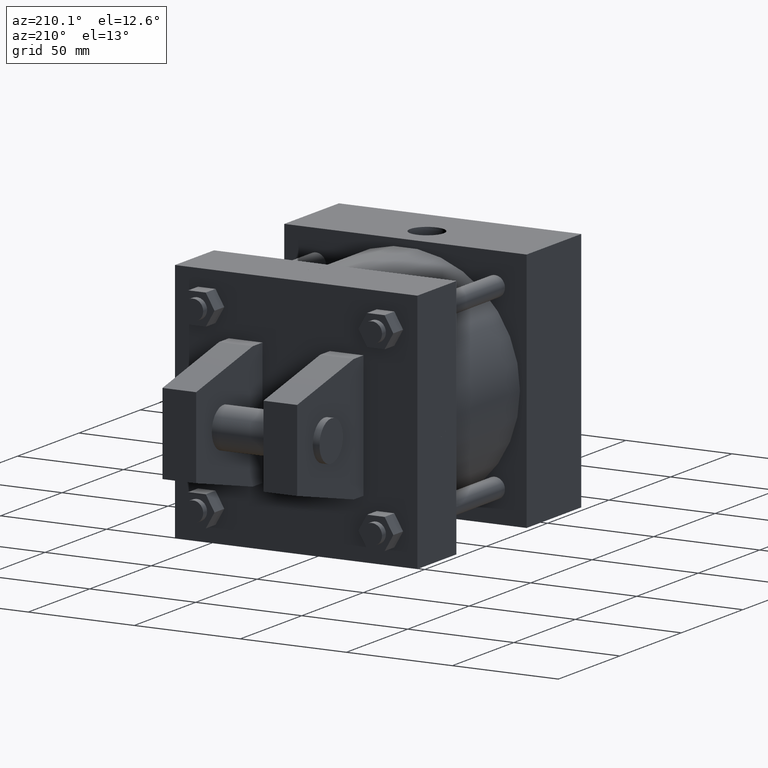
[diagram: clean part render]
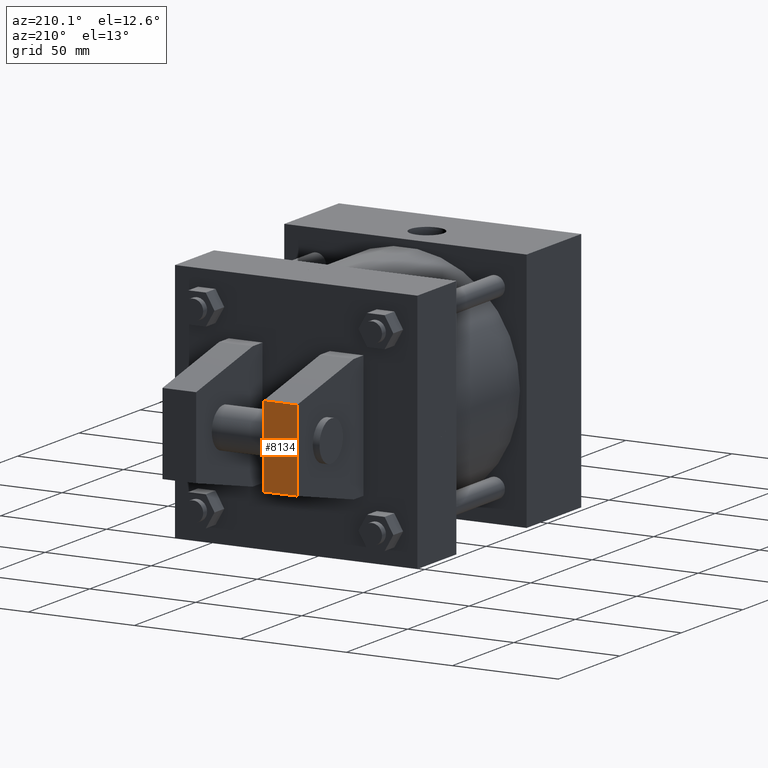
[diagram: same view with one face highlighted and labeled with its STEP entity id]
A machine part, auxiliary view. The second image highlights one B-rep face of the part: STEP entity #8134.
In plain terms, the highlighted planar face has unit normal (0, -1, 0).
Its self-contained STEP definition (entity closure, byte-faithful):
#4481=VERTEX_POINT('',#4482);
#4482=CARTESIAN_POINT('',(-1.587500000E+001,2.222500000E+002,-1.905000000E+001));
#4483=EDGE_CURVE('',#4481,#4488,#4484,.T.);
#4484=LINE('',#4485,#4486);
#4485=CARTESIAN_POINT('',(-1.587500000E+001,2.222500000E+002,-1.905000000E+001));
#4486=VECTOR('',#4487,1.0E+000);
#4487=DIRECTION('',(0.0E+000,0.0E+000,1.0E+000));
#4488=VERTEX_POINT('',#4489);
#4489=CARTESIAN_POINT('',(-1.587500000E+001,2.222500000E+002,1.905000000E+001));
#4809=VERTEX_POINT('',#4810);
#4810=CARTESIAN_POINT('',(-3.175000000E+001,2.222500000E+002,1.905000000E+001));
#4811=EDGE_CURVE('',#4809,#4816,#4812,.T.);
#4812=LINE('',#4813,#4814);
#4813=CARTESIAN_POINT('',(-3.175000000E+001,2.222500000E+002,-1.905000000E+001));
#4814=VECTOR('',#4815,1.0E+000);
#4815=DIRECTION('',(0.0E+000,0.0E+000,-1.0E+000));
#4816=VERTEX_POINT('',#4817);
#4817=CARTESIAN_POINT('',(-3.175000000E+001,2.222500000E+002,-1.905000000E+001));
#5006=EDGE_CURVE('',#4816,#4481,#5007,.T.);
#5007=LINE('',#5008,#5009);
#5008=CARTESIAN_POINT('',(-3.175000000E+001,2.222500000E+002,-1.905000000E+001));
#5009=VECTOR('',#5010,1.0E+000);
#5010=DIRECTION('',(1.0E+000,0.0E+000,0.0E+000));
#5024=FACE_OUTER_BOUND('',#5025,.T.);
#5025=EDGE_LOOP('',(#5026,#5027,#5028,#5029));
#5026=ORIENTED_EDGE('',*,*,#4483,.F.);
#5027=ORIENTED_EDGE('',*,*,#5006,.F.);
#5028=ORIENTED_EDGE('',*,*,#4811,.F.);
#5029=ORIENTED_EDGE('',*,*,#5030,.T.);
#5030=EDGE_CURVE('',#4809,#4488,#5031,.T.);
#5031=LINE('',#5032,#5033);
#5032=CARTESIAN_POINT('',(-3.175000000E+001,2.222500000E+002,1.905000000E+001));
#5033=VECTOR('',#5034,1.0E+000);
#5034=DIRECTION('',(1.0E+000,0.0E+000,0.0E+000));
#5035=PLANE('',#5036);
#5036=AXIS2_PLACEMENT_3D('',#5037,#5038,#5039);
#5037=CARTESIAN_POINT('',(-3.175000000E+001,2.222500000E+002,-1.905000000E+001));
#5038=DIRECTION('',(0.0E+000,-1.0E+000,0.0E+000));
#5039=DIRECTION('',(0.0E+000,0.0E+000,1.0E+000));
#8134=ADVANCED_FACE('',(#5024),#5035,.F.);